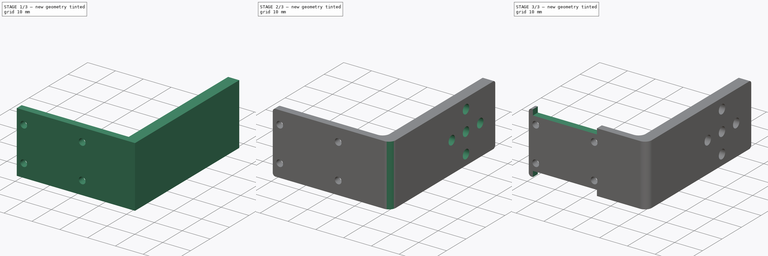
[diagram: build sequence overview — one tinted view per stage of 3, left to right]
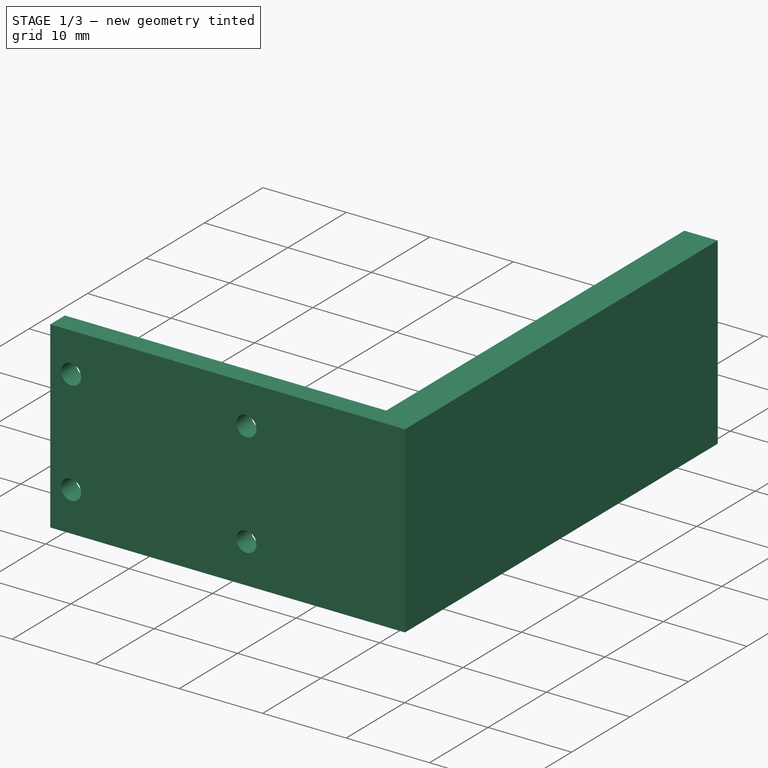
[diagram: stage 1 of 3 — iso view after this stage's code; geometry added in this stage tinted green]
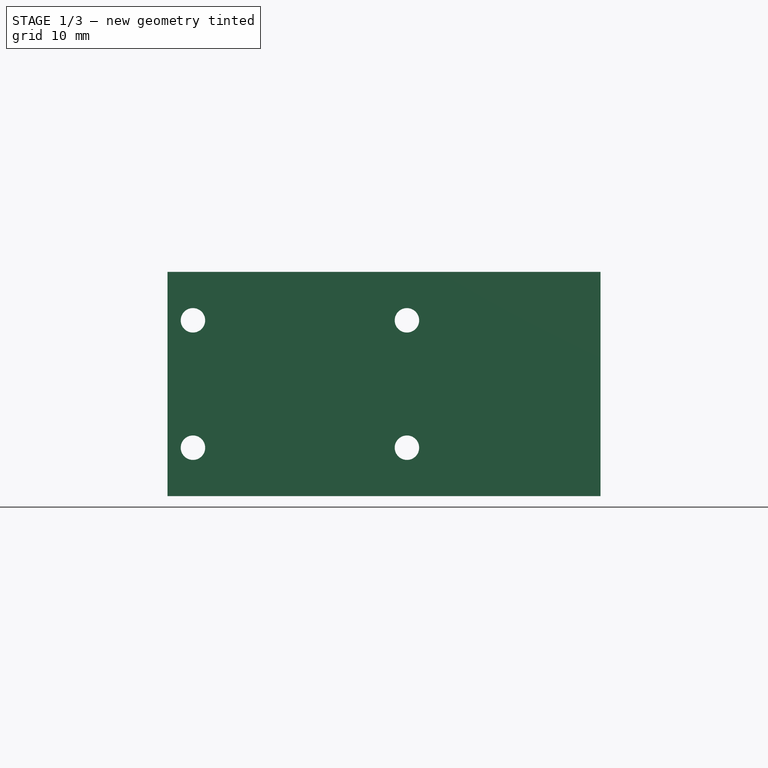
[diagram: stage 1 of 3 — front view after this stage's code; geometry added in this stage tinted green]
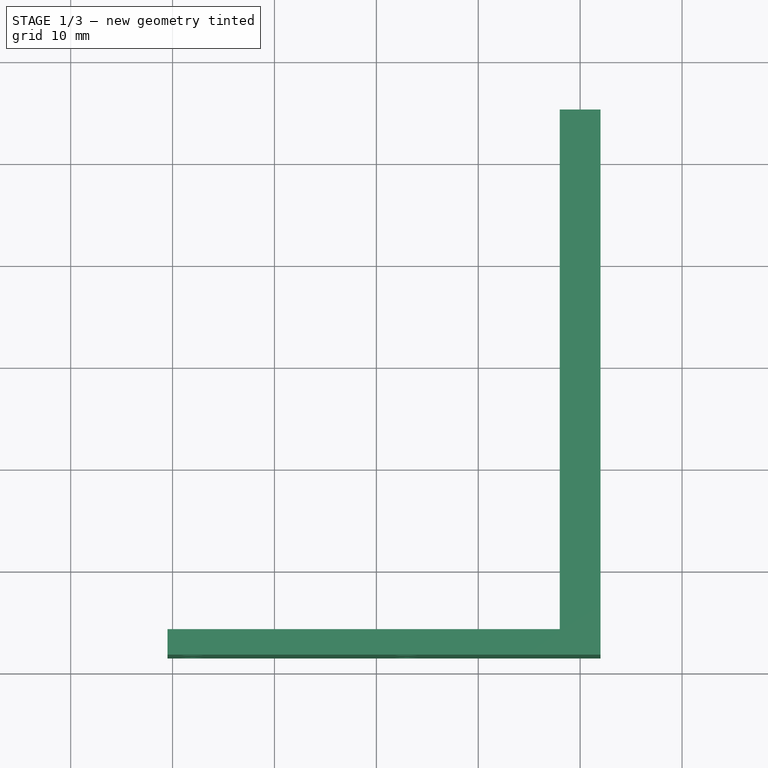
[diagram: stage 1 of 3 — top view after this stage's code; geometry added in this stage tinted green]
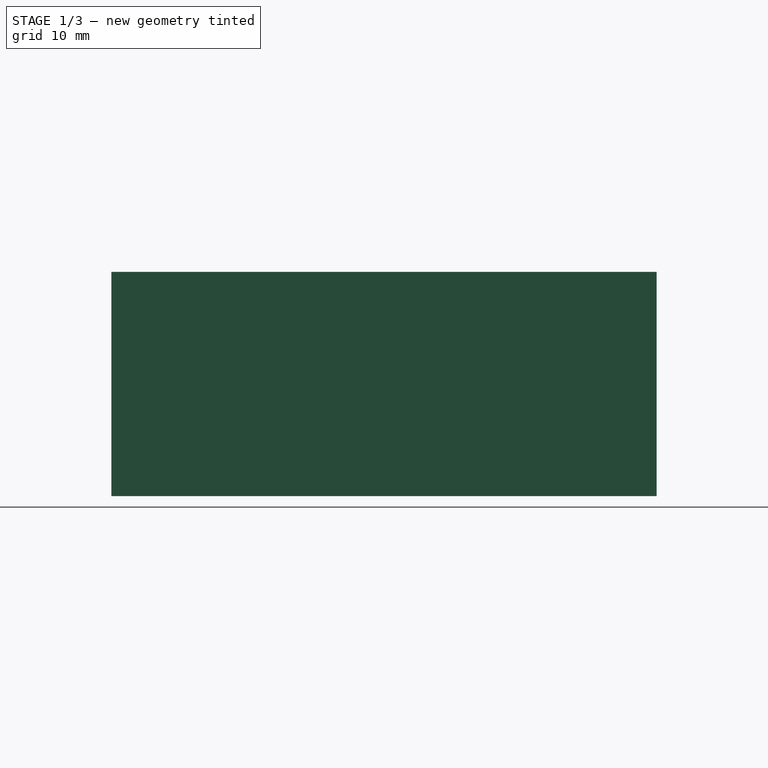
[diagram: stage 1 of 3 — right view after this stage's code; geometry added in this stage tinted green]
FCSTD DOCUMENT  (FreeCAD 1.0R39109 (Git))
Label: picam_support
License: All rights reserved
LicenseURL: http://en.wikipedia.org/wiki/All_rights_reserved
objects: Sketcher::SketchObject×5, PartDesign::Pocket×4, PartDesign::Fillet×2, PartDesign::Pad×1, PartDesign::Body×1
note: 32 computed .brp shape members not serialized (recipe doc carries the construction recipe); baked Part::Feature solids carry a one-line shape summary decoded from their .brp

FEATURE [Sketcher::SketchObject] Sketch
  ArcFitTolerance = 1e-06
  AttachmentSupport = -> [XY_Plane]
  FullyConstrained = true
  MakeInternals = false
  MapMode = 5
  sketch-geometry (12):
    g0: LineSegment StartX=-2 StartY=15 StartZ=0 EndX=2 EndY=15 EndZ=0
    g1: LineSegment StartX=2 StartY=15 StartZ=0 EndX=2 EndY=-38.5 EndZ=0
    g2: LineSegment StartX=2 StartY=-38.5 StartZ=0 EndX=-40.5 EndY=-38.5 EndZ=0
    g3: LineSegment StartX=-40.5 StartY=-38.5 StartZ=0 EndX=-40.5 EndY=-36 EndZ=0
    g4: LineSegment StartX=-40.5 StartY=-36 StartZ=0 EndX=-2 EndY=-36 EndZ=0
    g5: LineSegment StartX=-2 StartY=-36 StartZ=0 EndX=-2 EndY=15 EndZ=0
    g6: LineSegment [constr] StartX=0 StartY=0 StartZ=0 EndX=0 EndY=10 EndZ=0
    g7: LineSegment [constr] StartX=0 StartY=10 StartZ=0 EndX=0 EndY=15 EndZ=0
    g8: LineSegment [constr] StartX=-40.5 StartY=-37.25 StartZ=0 EndX=-38 EndY=-37.25 EndZ=0
    g9: LineSegment [constr] StartX=-38 StartY=-37.25 StartZ=0 EndX=-39 EndY=-37.25 EndZ=0
    g10: LineSegment [constr] StartX=-39 StartY=-37.25 StartZ=0 EndX=-18 EndY=-37.25 EndZ=0
    g11: LineSegment [constr] StartX=-18 StartY=-37.25 StartZ=0 EndX=-17 EndY=-37.25 EndZ=0
  constraints (34):
    c: Coincident(g0,g1)
    c: Vertical(g1)
    c: Coincident(g1,g2)
    c: Horizontal(g2)
    c: Coincident(g2,g3)
    c: Vertical(g3)
    c: Coincident(g3,g4)
    c: Horizontal(g4)
    c: Coincident(g4,g5)
    c: Coincident(g5,g0)
    c: Vertical(g5)
    c: Symmetric(g0,g0,g-2)
    c: DistanceY(g4,g-1) = 36
    c: DistanceX(g0,g0) = 4
    c: DistanceY(g3,g3) = 2.5
    c: Coincident(g6,g-1)
    c: PointOnObject(g6,g-2)
    c: Coincident(g7,g6)
    c: Symmetric(g0,g0,g7)
    c: DistanceY(g7,g7) = 5
    c: DistanceY(g6,g6) = 10
    c: Symmetric(g3,g3,g8)
    c: Horizontal(g8)
    c: Coincident(g8,g9)
    c: Horizontal(g9)
    c: Coincident(g9,g10)
    c: Horizontal(g10)
    c: Coincident(g10,g11)
    c: Horizontal(g11)
    c: Equal(g9,g11)
    c: DistanceX(g11,g11) = 1
    c: DistanceX(g10,g10) = 21
    c: DistanceX(g11,g4) = 15
    c: DistanceX(g8,g8) = 2.5
FEATURE [PartDesign::Pad] Pad  label="BasePad"
  Direction = (0,0,1)
  Length = 11
  Length2 = 11
  Profile = -> Sketch
  ReferenceAxis = -> Sketch [N_Axis]
  Refine = true
  Suppressed = false
  Type = 4
FEATURE [Sketcher::SketchObject] Sketch001
  ArcFitTolerance = 1e-06
  AttachmentSupport = -> [Pad]
  ExternalGeometry = -> [Pad]
  FullyConstrained = true
  MakeInternals = false
  MapMode = 5
  Placement = pos=(0,-38.5,0) rot=(1,0,0;1.5708rad)
  sketch-geometry (4):
    g0: Circle CenterX=-38 CenterY=6.25 CenterZ=0 NormalX=0 NormalY=0 NormalZ=1 AngleXU=0 Radius=1.2
    g1: Circle CenterX=-17 CenterY=6.25 CenterZ=0 NormalX=0 NormalY=0 NormalZ=1 AngleXU=0 Radius=1.2
    g2: Circle CenterX=-38 CenterY=-6.25 CenterZ=0 NormalX=0 NormalY=0 NormalZ=1 AngleXU=0 Radius=1.2
    g3: Circle CenterX=-17 CenterY=-6.25 CenterZ=0 NormalX=0 NormalY=0 NormalZ=1 AngleXU=0 Radius=1.2
  constraints (11):
    c: Horizontal(g3,g2)
    c: Vertical(g2,g0)
    c: Horizontal(g1,g0)
    c: Symmetric(g3,g1,g-1)
    c: DistanceX(g0,g1) = 21
    c: Equal(g1,g0)
    c: Equal(g0,g2)
    c: Equal(g2,g3)
    c: Radius(g3) = 1.2
    c: DistanceY(g3,g1) = 12.5
    c: DistanceX(g1,g-3) = 15
FEATURE [PartDesign::Pocket] Pocket  label="PiCamScrewsPocket"
  BaseFeature = -> Pad
  Direction = (0,1,-2e-16)
  Length = 5
  Length2 = 5
  Profile = -> Sketch001
  ReferenceAxis = -> Sketch001 [N_Axis]
  Refine = true
  Suppressed = false
  Type = 1
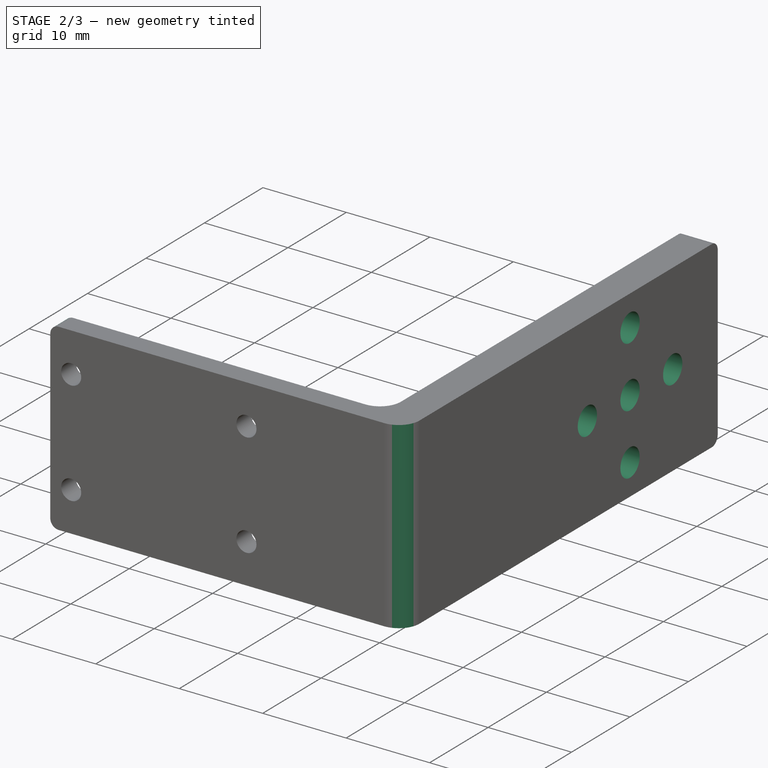
[diagram: stage 2 of 3 — iso view after this stage's code; geometry added in this stage tinted green]
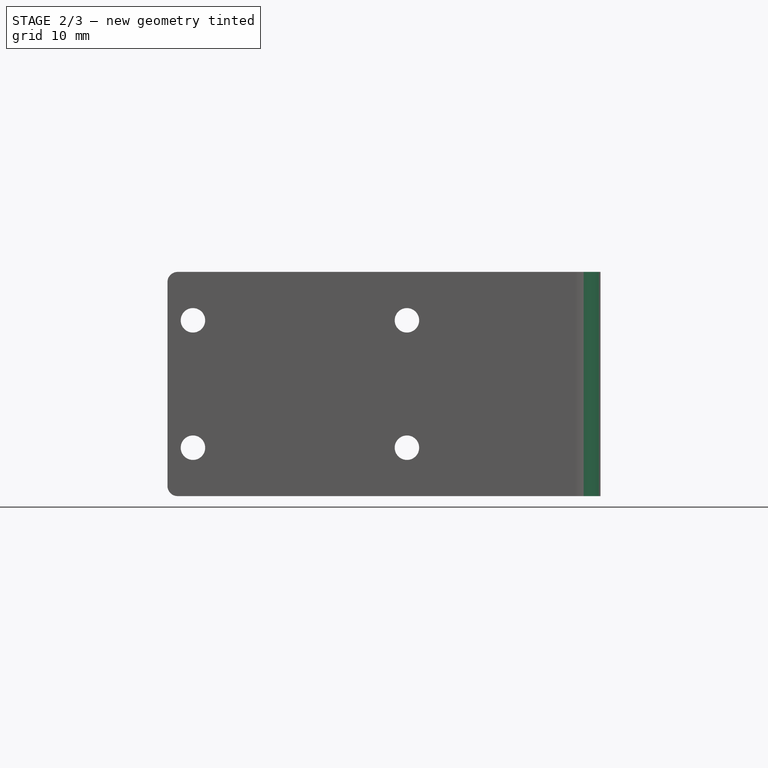
[diagram: stage 2 of 3 — front view after this stage's code; geometry added in this stage tinted green]
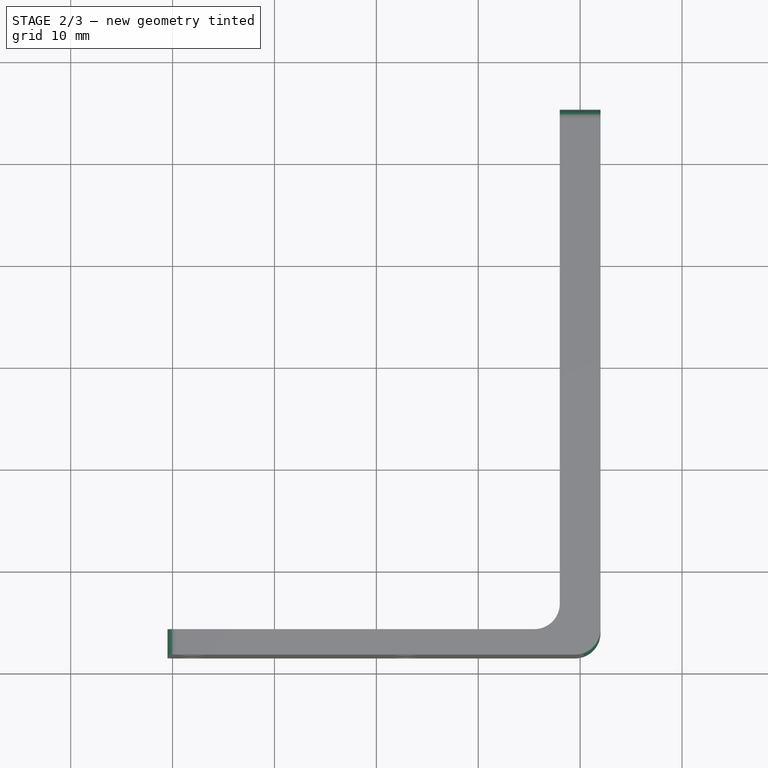
[diagram: stage 2 of 3 — top view after this stage's code; geometry added in this stage tinted green]
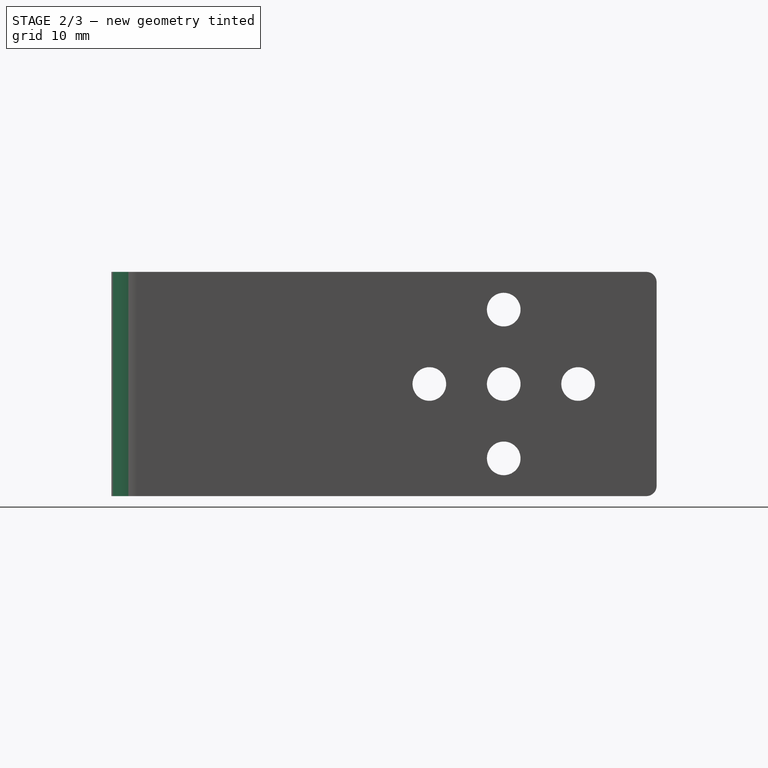
[diagram: stage 2 of 3 — right view after this stage's code; geometry added in this stage tinted green]
FEATURE [PartDesign::Fillet] Fillet  label="BaseFillet"
  Base = -> Pocket [Edge8,Edge5]
  BaseFeature = -> Pocket
  Radius = 2.5
  Refine = true
  SupportTransform = false
  Suppressed = false
  UseAllEdges = false
FEATURE [PartDesign::Fillet] Fillet001  label="CornersFillet"
  Base = -> Fillet [Edge9,Edge7,Edge15,Edge19]
  BaseFeature = -> Fillet
  Radius = 1
  Refine = true
  SupportTransform = false
  Suppressed = false
  UseAllEdges = false
FEATURE [Sketcher::SketchObject] Sketch002
  ArcFitTolerance = 1e-06
  AttachmentSupport = -> [Fillet001]
  ExternalGeometry = -> [Fillet001]
  FullyConstrained = true
  MakeInternals = false
  MapMode = 5
  Placement = pos=(2,0,0) rot=(0.57735,0.57735,0.57735;2.0944rad)
  sketch-geometry (8):
    g0: Circle CenterX=0 CenterY=0 CenterZ=0 NormalX=0 NormalY=0 NormalZ=1 AngleXU=0 Radius=1.65
    g1: Circle [constr] CenterX=0 CenterY=0 CenterZ=0 NormalX=0 NormalY=0 NormalZ=1 AngleXU=0 Radius=7.3
    g2: Circle CenterX=7.3 CenterY=0 CenterZ=0 NormalX=0 NormalY=0 NormalZ=1 AngleXU=0 Radius=1.65
    g3: Circle CenterX=0 CenterY=-7.3 CenterZ=0 NormalX=0 NormalY=0 NormalZ=1 AngleXU=0 Radius=1.65
    g4: Circle CenterX=-7.3 CenterY=0 CenterZ=0 NormalX=0 NormalY=0 NormalZ=1 AngleXU=0 Radius=1.65
    g5: Circle CenterX=0 CenterY=7.3 CenterZ=0 NormalX=0 NormalY=0 NormalZ=1 AngleXU=0 Radius=1.65
    g6: GeomPoint [constr] X=1.65 Y=0 Z=0
    g7: GeomPoint [constr] X=5.65 Y=0 Z=0
  constraints (21):
    c: Coincident(g0,g-1)
    c: Coincident(g1,g0)
    c: PointOnObject(g2,g1)
    c: PointOnObject(g3,g1)
    c: PointOnObject(g4,g1)
    c: PointOnObject(g5,g1)
    c: Equal(g5,g2)
    c: Equal(g2,g0)
    c: Equal(g0,g4)
    c: Equal(g4,g3)
    c: Radius(g4) = 1.65
    c: PointOnObject(g2,g-1)
    c: PointOnObject(g5,g-2)
    c: PointOnObject(g4,g-1)
    c: PointOnObject(g3,g-2)
    c: DistanceY(g-4,g-3) = 22
    c: PointOnObject(g6,g0)
    c: PointOnObject(g7,g2)
    c: Horizontal(g7,g6)
    c: PointOnObject(g6,g-1)
    c: DistanceX(g6,g7) = 4
FEATURE [PartDesign::Pocket] Pocket001  label="ConnScrewPocket"
  BaseFeature = -> Fillet001
  Direction = (-1,0,0)
  Length = 5
  Length2 = 5
  Profile = -> Sketch002
  ReferenceAxis = -> Sketch002 [N_Axis]
  Refine = true
  Suppressed = false
  Type = 1
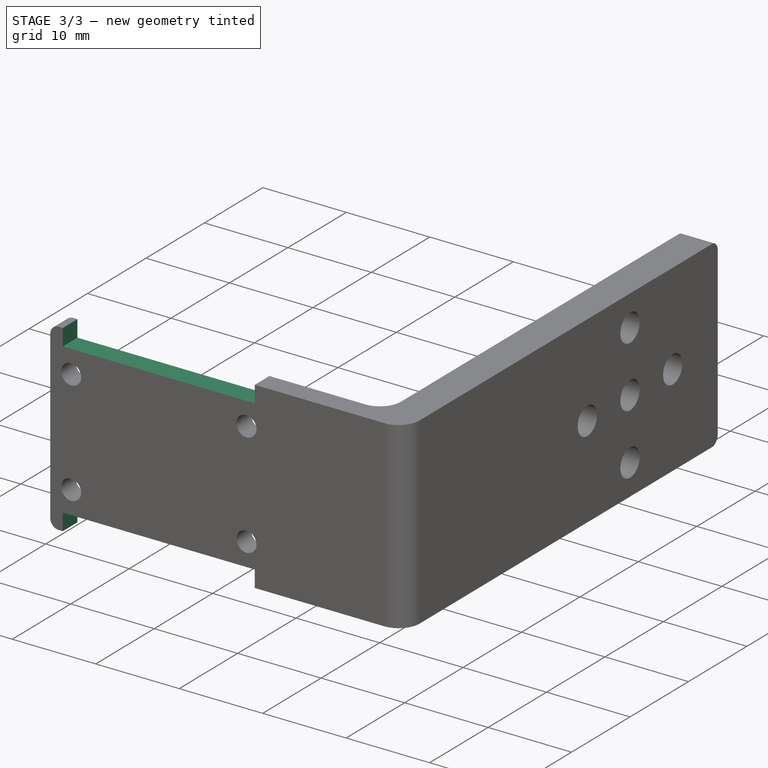
[diagram: stage 3 of 3 — iso view after this stage's code; geometry added in this stage tinted green]
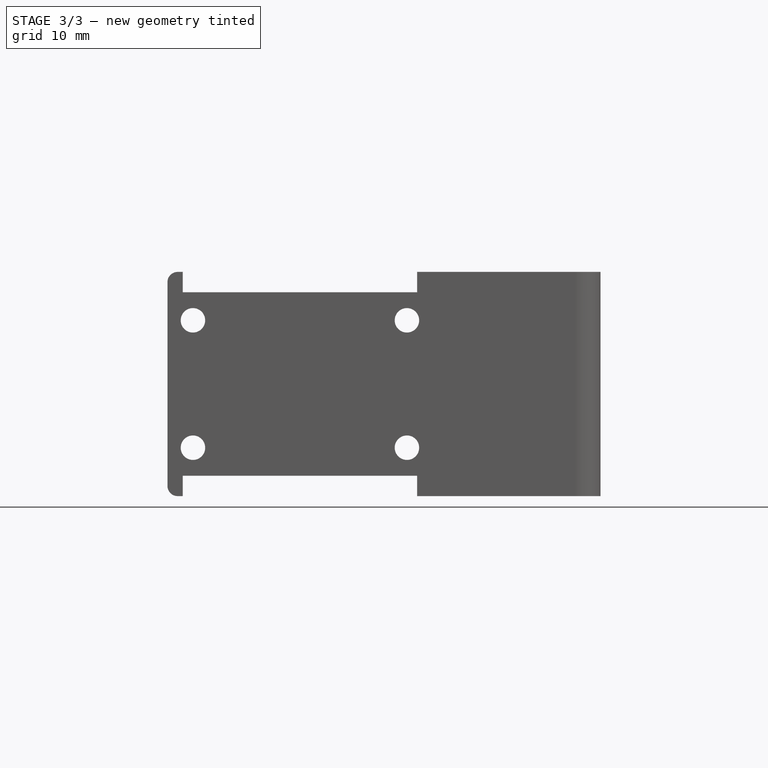
[diagram: stage 3 of 3 — front view after this stage's code; geometry added in this stage tinted green]
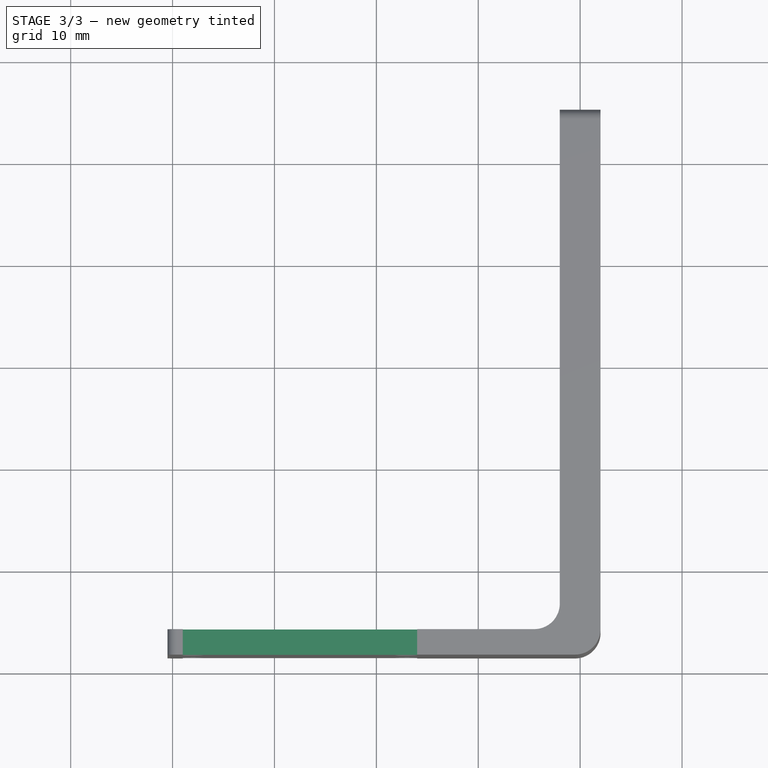
[diagram: stage 3 of 3 — top view after this stage's code; geometry added in this stage tinted green]
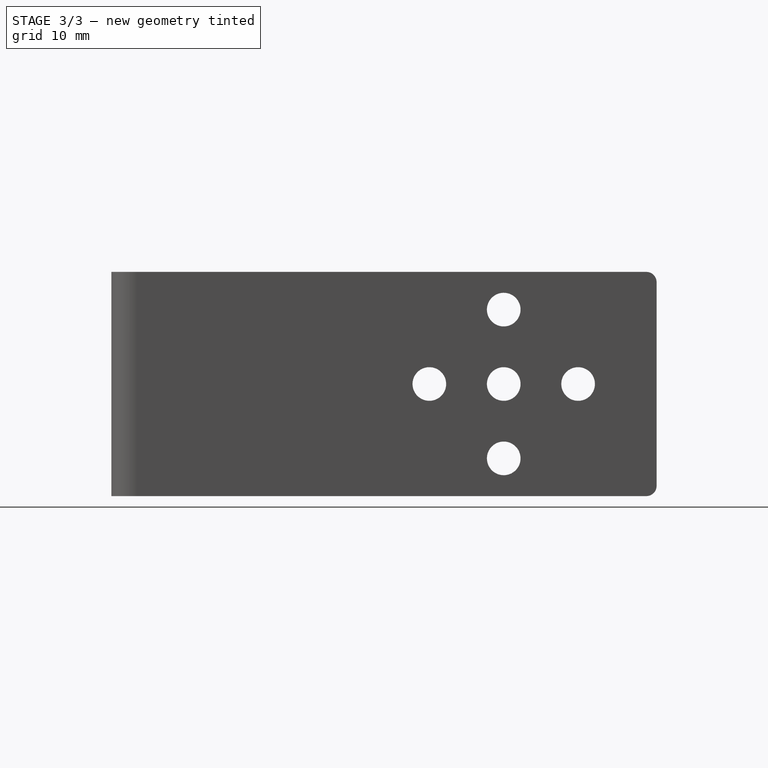
[diagram: stage 3 of 3 — right view after this stage's code; geometry added in this stage tinted green]
FEATURE [Sketcher::SketchObject] Sketch003
  ArcFitTolerance = 1e-06
  AttachmentSupport = -> [Pocket001]
  FullyConstrained = true
  MakeInternals = false
  MapMode = 5
  Placement = pos=(-2,0,0) rot=(0.57735,-0.57735,-0.57735;2.0944rad)
  sketch-geometry (1):
    g0: Circle CenterX=0 CenterY=0 CenterZ=0 NormalX=0 NormalY=0 NormalZ=1 AngleXU=0 Radius=10.25
  constraints (2):
    c: Coincident(g0,g-1)
    c: Radius(g0) = 10.25
FEATURE [PartDesign::Pocket] Pocket002  label="ConnBasePocket"
  BaseFeature = -> Pocket001
  Direction = (1,0,0)
  Length = 2
  Length2 = 5
  Profile = -> Sketch003
  ReferenceAxis = -> Sketch003 [N_Axis]
  Refine = true
  Suppressed = false
  Type = 0
FEATURE [Sketcher::SketchObject] Sketch004
  ArcFitTolerance = 1e-06
  AttachmentSupport = -> [Pocket002]
  ExternalGeometry = -> [Pocket002]
  FullyConstrained = true
  MakeInternals = false
  MapMode = 5
  Placement = pos=(0,-38.5,0) rot=(1,0,0;1.5708rad)
  sketch-geometry (10):
    g0: GeomPoint X=-27.5 Y=1.1e-15 Z=0
    g1: LineSegment StartX=-39 StartY=11 StartZ=0 EndX=-39 EndY=9 EndZ=0
    g2: LineSegment StartX=-39 StartY=9 StartZ=0 EndX=-16 EndY=9 EndZ=0
    g3: LineSegment StartX=-16 StartY=9 StartZ=0 EndX=-16 EndY=11 EndZ=0
    g4: LineSegment StartX=-16 StartY=11 StartZ=0 EndX=-39 EndY=11 EndZ=0
    g5: LineSegment StartX=-39 StartY=-11 StartZ=0 EndX=-16 EndY=-11 EndZ=0
    g6: LineSegment StartX=-16 StartY=-11 StartZ=0 EndX=-16 EndY=-9 EndZ=0
    g7: LineSegment StartX=-16 StartY=-9 StartZ=0 EndX=-39 EndY=-9 EndZ=0
    g8: LineSegment StartX=-39 StartY=-9 StartZ=0 EndX=-39 EndY=-11 EndZ=0
    g9: LineSegment [constr] StartX=-27.5 StartY=1.1e-15 StartZ=0 EndX=-27.5 EndY=9 EndZ=0
  constraints (27):
    c: Symmetric(g-4,g-3,g0)
    c: Coincident(g1,g2)
    c: Coincident(g2,g3)
    c: Coincident(g3,g4)
    c: Coincident(g4,g1)
    c: Vertical(g1)
    c: Vertical(g3)
    c: Horizontal(g2)
    c: Horizontal(g4)
    c: PointOnObject(g1,g-5)
    c: Coincident(g5,g6)
    c: Coincident(g6,g7)
    c: Coincident(g7,g8)
    c: Coincident(g8,g5)
    c: Horizontal(g5)
    c: Horizontal(g7)
    c: Vertical(g6)
    c: Vertical(g8)
    c: PointOnObject(g5,g-6)
    c: DistanceX(g7,g7) = 23
    c: Equal(g2,g7)
    c: Vertical(g2,g6)
    c: Coincident(g9,g0)
    c: Symmetric(g2,g2,g9)
    c: Vertical(g9)
    c: Equal(g6,g3)
    c: DistanceY(g3,g3) = 2
FEATURE [PartDesign::Pocket] Pocket003  label="ConectorPocket"
  BaseFeature = -> Pocket002
  Direction = (0,1,-2e-16)
  Length = 5
  Length2 = 5
  Profile = -> Sketch004
  ReferenceAxis = -> Sketch004 [N_Axis]
  Refine = true
  Suppressed = false
  Type = 0
FEATURE [PartDesign::Body] Body  label="picam_support"
  AllowCompound = false
  Group = -> [Sketch,Pad,Sketch001,Pocket,Fillet,Fillet001,Sketch002,Pocket001,Sketch003,Pocket002,Sketch004,Pocket003]
  Origin = -> Origin
  Tip = -> Pocket003
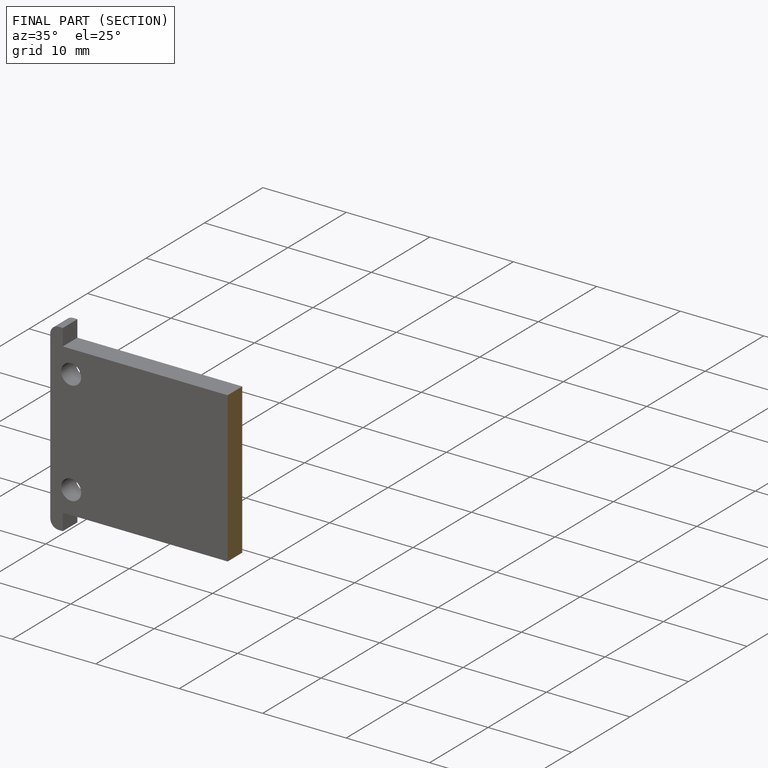
[diagram: finished part — half-section view (interior)]
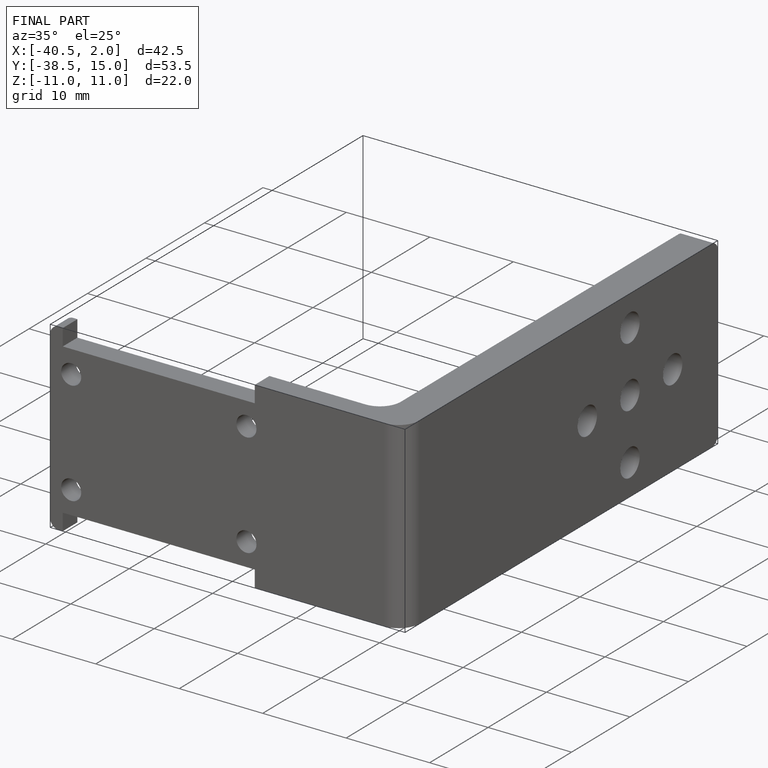
[diagram: finished part — iso view with bounding-box wireframe]
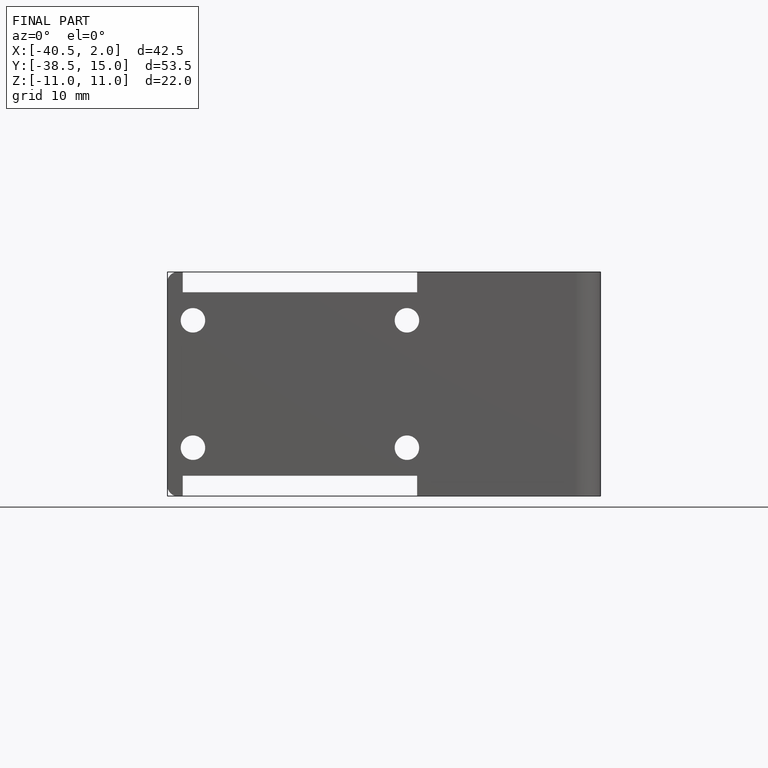
[diagram: finished part — front view with bounding-box wireframe]
